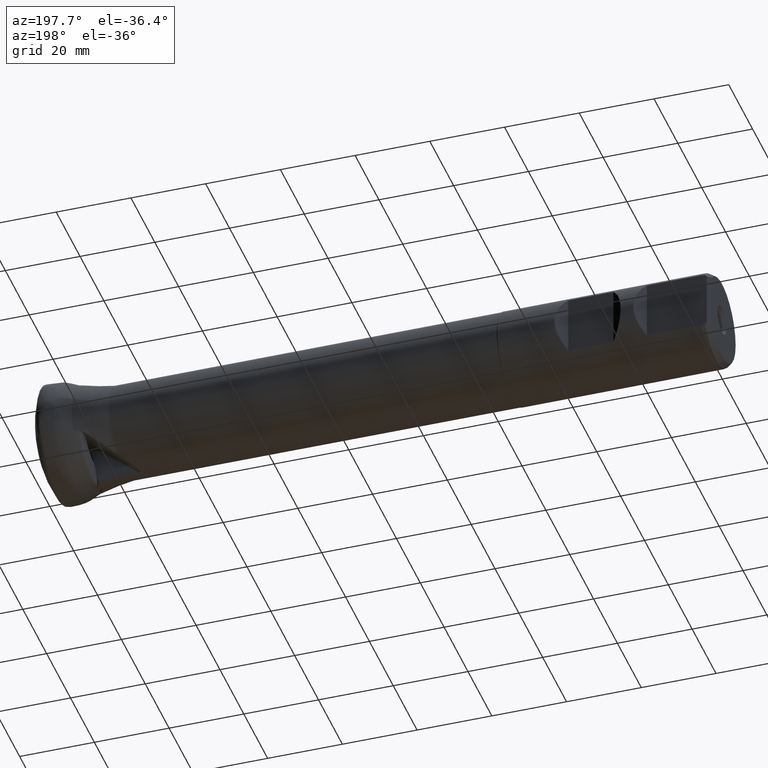
[diagram: clean part render]
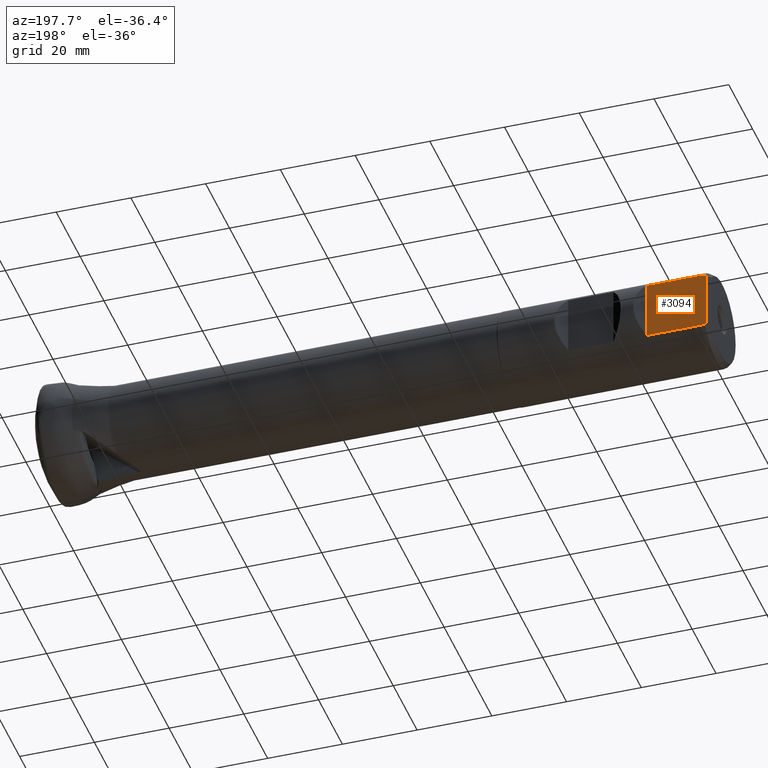
[diagram: same view with one face highlighted and labeled with its STEP entity id]
A machine part, auxiliary view. The second image highlights one B-rep face of the part: STEP entity #3094.
In plain terms, the highlighted planar face has unit normal (0, -1, 0).
Its self-contained STEP definition (entity closure, byte-faithful):
#627 = DIRECTION ( 'NONE',  ( -0.0000000000000000000, -0.0000000000000000000, 1.000000000000000000 ) ) ;
#645 = CARTESIAN_POINT ( 'NONE',  ( -162.9052591770394500, 9.700000000000020600, -35.00000000000000000 ) ) ;
#743 = CARTESIAN_POINT ( 'NONE',  ( -162.9052591770394500, 9.700000000000020600, -7.884161337770780900 ) ) ;
#851 = CARTESIAN_POINT ( 'NONE',  ( -162.9052591770394500, 9.700000000000020600, -35.00000000000000000 ) ) ;
#861 = CARTESIAN_POINT ( 'NONE',  ( -177.4052591770391700, 9.700000000000025900, 7.884161337770777300 ) ) ;
#870 = LINE ( 'NONE', #1326, #1913 ) ;
#872 = ORIENTED_EDGE ( 'NONE', *, *, #5587, .F. ) ;
#873 = CARTESIAN_POINT ( 'NONE',  ( -177.7386441568087600, 9.700000000000018800, 7.831304577633776600 ) ) ;
#892 = B_SPLINE_CURVE_WITH_KNOTS ( 'NONE', 3,
 ( #1349, #1295, #1200, #1191 ),
 .UNSPECIFIED., .F., .F.,
 ( 4, 4 ),
 ( 0.02300155130761207000, 0.02401414385632079000 ),
 .UNSPECIFIED. ) ;
#901 = CARTESIAN_POINT ( 'NONE',  ( -178.4052591770394800, 9.700000000000018800, 7.724635913750156600 ) ) ;
#912 = CARTESIAN_POINT ( 'NONE',  ( -178.0719785402211500, 9.700000000000018800, 7.778135909642403900 ) ) ;
#937 = LINE ( 'NONE', #645, #1974 ) ;
#1005 = DIRECTION ( 'NONE',  ( 1.084202172485503400E-016, -1.000000000000000000, 0.0000000000000000000 ) ) ;
#1191 = CARTESIAN_POINT ( 'NONE',  ( -178.4052591770394800, 9.700000000000018800, -7.724635913750154800 ) ) ;
#1200 = CARTESIAN_POINT ( 'NONE',  ( -178.0719907667367700, 9.700000000000018800, -7.778133946976521600 ) ) ;
#1271 = VECTOR ( 'NONE', #1954, 1000.000000000000000 ) ;
#1275 = CARTESIAN_POINT ( 'NONE',  ( -177.4052591770391700, 9.700000000000025900, -7.884161337770777300 ) ) ;
#1283 = EDGE_CURVE ( 'NONE', #1379, #3550, #3299, .T. ) ;
#1286 = VERTEX_POINT ( 'NONE', #4749 ) ;
#1295 = CARTESIAN_POINT ( 'NONE',  ( -177.7386561443100000, 9.700000000000018800, -7.831302677066817700 ) ) ;
#1315 = ORIENTED_EDGE ( 'NONE', *, *, #2545, .T. ) ;
#1326 = CARTESIAN_POINT ( 'NONE',  ( -119.9052591770394800, 9.700000000000025900, 7.884161337770777300 ) ) ;
#1334 = CARTESIAN_POINT ( 'NONE',  ( -178.4052591770394800, 9.700000000000018800, 7.724635913750156600 ) ) ;
#1349 = CARTESIAN_POINT ( 'NONE',  ( -177.4052591770391700, 9.700000000000025900, -7.884161337770777300 ) ) ;
#1350 = CARTESIAN_POINT ( 'NONE',  ( -178.5739917641605800, 9.700000000000018800, 7.544063512784121400 ) ) ;
#1370 = CARTESIAN_POINT ( 'NONE',  ( -178.9052591770394800, 9.700000000000018800, 7.177356368778344400 ) ) ;
#1379 = VERTEX_POINT ( 'NONE', #4105 ) ;
#1392 = CARTESIAN_POINT ( 'NONE',  ( -178.7407601716286900, 9.700000000000018800, 7.361728307720946800 ) ) ;
#1597 = CARTESIAN_POINT ( 'NONE',  ( -178.9052591770394800, 9.700000000000018800, 7.177356368778344400 ) ) ;
#1627 = CARTESIAN_POINT ( 'NONE',  ( -162.9052591770394500, 9.700000000000020600, 7.884161337770777300 ) ) ;
#1809 = B_SPLINE_CURVE_WITH_KNOTS ( 'NONE', 3,
 ( #1370, #1392, #1350, #1334 ),
 .UNSPECIFIED., .F., .F.,
 ( 4, 4 ),
 ( 0.03649721749932387200, 0.03724552725762930700 ),
 .UNSPECIFIED. ) ;
#1839 = VERTEX_POINT ( 'NONE', #1627 ) ;
#1913 = VECTOR ( 'NONE', #5601, 1000.000000000000000 ) ;
#1917 = CARTESIAN_POINT ( 'NONE',  ( -178.4052591770394800, 9.700000000000018800, 7.724635913750156600 ) ) ;
#1930 = VERTEX_POINT ( 'NONE', #1275 ) ;
#1954 = DIRECTION ( 'NONE',  ( -0.0000000000000000000, -0.0000000000000000000, 1.000000000000000000 ) ) ;
#1974 = VECTOR ( 'NONE', #627, 1000.000000000000000 ) ;
#1981 = ORIENTED_EDGE ( 'NONE', *, *, #5479, .T. ) ;
#2038 = CARTESIAN_POINT ( 'NONE',  ( -178.9052591770394800, 9.700000000000018800, -35.00000000000000000 ) ) ;
#2299 = ORIENTED_EDGE ( 'NONE', *, *, #5118, .F. ) ;
#2378 = EDGE_LOOP ( 'NONE', ( #2299, #872, #5589, #5050, #4283, #1315, #1981, #5460 ) ) ;
#2470 = EDGE_CURVE ( 'NONE', #1930, #2585, #3573, .T. ) ;
#2510 = FACE_OUTER_BOUND ( 'NONE', #2378, .T. ) ;
#2545 = EDGE_CURVE ( 'Kante183', #3550, #5444, #3438, .T. ) ;
#2585 = VERTEX_POINT ( 'NONE', #743 ) ;
#2615 = DIRECTION ( 'NONE',  ( 1.000000000000000000, 1.084202172485503400E-016, 0.0000000000000000000 ) ) ;
#2632 = PLANE ( 'NONE',  #2878 ) ;
#2646 = VERTEX_POINT ( 'NONE', #1917 ) ;
#2689 = VECTOR ( 'NONE', #2696, 1000.000000000000000 ) ;
#2696 = DIRECTION ( 'NONE',  ( 1.000000000000000000, 0.0000000000000000000, 0.0000000000000000000 ) ) ;
#2715 = CARTESIAN_POINT ( 'NONE',  ( -119.9052591770394800, 9.700000000000025900, -7.884161337770777300 ) ) ;
#2878 = AXIS2_PLACEMENT_3D ( 'NONE', #851, #1005, #2615 ) ;
#3094 = ADVANCED_FACE ( 'NONE', ( #2510 ), #2632, .F. ) ;
#3299 = B_SPLINE_CURVE_WITH_KNOTS ( 'NONE', 3,
 ( #4803, #4795, #4774, #4761 ),
 .UNSPECIFIED., .F., .F.,
 ( 4, 4 ),
 ( 0.01937324663784086400, 0.02011357443876818400 ),
 .UNSPECIFIED. ) ;
#3438 = LINE ( 'NONE', #2038, #1271 ) ;
#3550 = VERTEX_POINT ( 'NONE', #4552 ) ;
#3573 = LINE ( 'NONE', #2715, #2689 ) ;
#4105 = CARTESIAN_POINT ( 'NONE',  ( -178.4052591770394800, 9.700000000000018800, -7.724635913750154800 ) ) ;
#4283 = ORIENTED_EDGE ( 'NONE', *, *, #1283, .T. ) ;
#4531 = B_SPLINE_CURVE_WITH_KNOTS ( 'NONE', 3,
 ( #901, #912, #873, #861 ),
 .UNSPECIFIED., .F., .F.,
 ( 4, 4 ),
 ( 0.02156378377327072100, 0.02257556955679660200 ),
 .UNSPECIFIED. ) ;
#4552 = CARTESIAN_POINT ( 'NONE',  ( -178.9052591770394800, 9.700000000000018800, -7.177356368778371900 ) ) ;
#4717 = EDGE_CURVE ( 'NONE', #1930, #1379, #892, .T. ) ;
#4749 = CARTESIAN_POINT ( 'NONE',  ( -177.4052591770391700, 9.700000000000025900, 7.884161337770777300 ) ) ;
#4761 = CARTESIAN_POINT ( 'NONE',  ( -178.9052591770394800, 9.700000000000018800, -7.177356368778371900 ) ) ;
#4774 = CARTESIAN_POINT ( 'NONE',  ( -178.7409407146315600, 9.700000000000018800, -7.361525953527933400 ) ) ;
#4795 = CARTESIAN_POINT ( 'NONE',  ( -178.5740701924605100, 9.700000000000018800, -7.543979581240922300 ) ) ;
#4803 = CARTESIAN_POINT ( 'NONE',  ( -178.4052591770394800, 9.700000000000018800, -7.724635913750154800 ) ) ;
#4857 = EDGE_CURVE ( 'NONE', #2646, #1286, #4531, .T. ) ;
#5050 = ORIENTED_EDGE ( 'NONE', *, *, #4717, .T. ) ;
#5118 = EDGE_CURVE ( 'NONE', #1839, #1286, #870, .T. ) ;
#5444 = VERTEX_POINT ( 'NONE', #1597 ) ;
#5460 = ORIENTED_EDGE ( 'NONE', *, *, #4857, .T. ) ;
#5479 = EDGE_CURVE ( 'NONE', #5444, #2646, #1809, .T. ) ;
#5587 = EDGE_CURVE ( 'Kante182', #2585, #1839, #937, .T. ) ;
#5589 = ORIENTED_EDGE ( 'NONE', *, *, #2470, .F. ) ;
#5601 = DIRECTION ( 'NONE',  ( -1.000000000000000000, -0.0000000000000000000, -0.0000000000000000000 ) ) ;